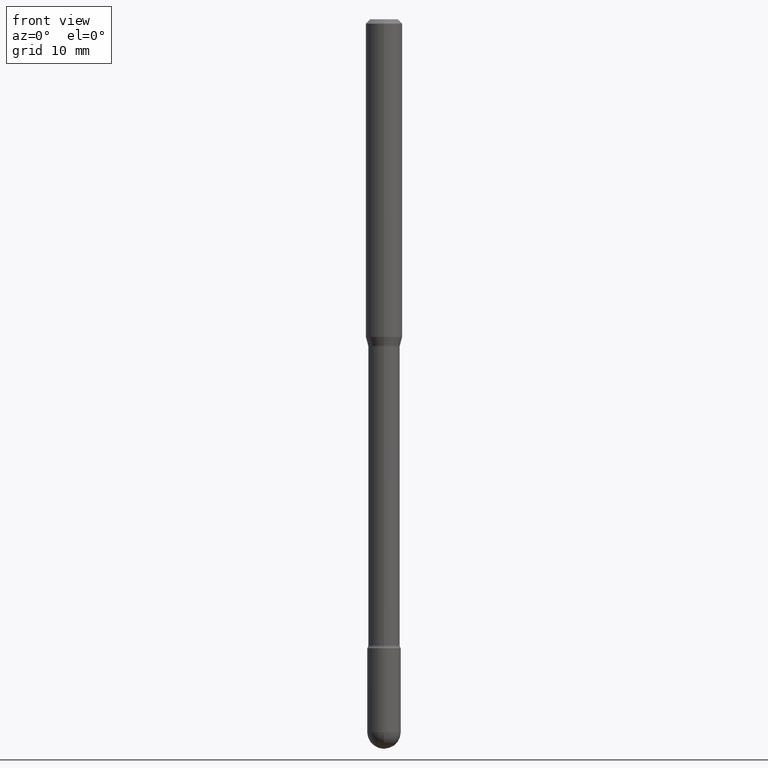
[diagram: clean part render]
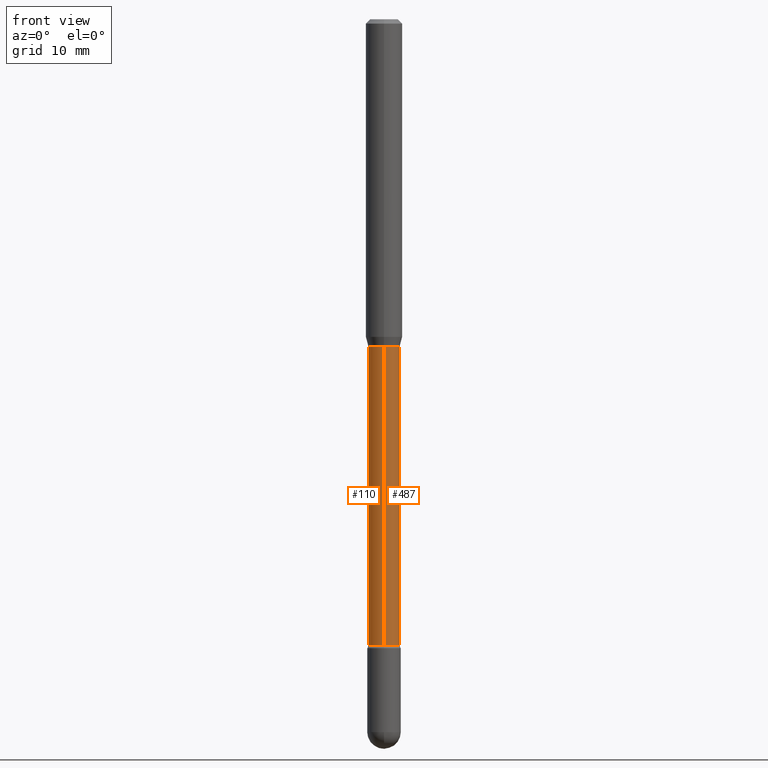
[diagram: same view with one multi-face feature highlighted, each face labeled with its STEP entity id]
A machine part, front view. The highlighted faces form ONE feature: a constant-radius fillet chain: 2 tangent blend faces with common blend radius 1.3729 mm. The faces share edges in the B-rep.
Their STEP definitions:
[1] entity #110 (Cylinder):
#28 = ORIENTED_EDGE ( 'NONE', *, *, #140, .T. ) ;
#39 = CARTESIAN_POINT ( 'NONE',  ( 3.963052108702488674E-16, 0.05404999999999254845, -2.145429341715430649 ) ) ;
#66 = VERTEX_POINT ( 'NONE', #273 ) ;
#67 = CIRCLE ( 'NONE', #247, 0.05405000000000000776 ) ;
#69 = ORIENTED_EDGE ( 'NONE', *, *, #494, .F. ) ;
#92 = DIRECTION ( 'NONE',  ( -2.445520969400464168E-29, 3.491406638149850481E-15, 1.000000000000000000 ) ) ;
#100 = CARTESIAN_POINT ( 'NONE',  ( 3.840483486783342056E-16, 0.05405000000000002164, 2.893628700992465494E-16 ) ) ;
#110 = ADVANCED_FACE ( 'NONE', ( #437 ), #351, .T. ) ;
#111 = CARTESIAN_POINT ( 'NONE',  ( -3.774291327288904667E-16, -0.05405000000000752258, -2.145429341715430205 ) ) ;
#127 = VECTOR ( 'NONE', #374, 39.37007874015748143 ) ;
#140 = EDGE_CURVE ( 'NONE', #433, #289, #322, .T. ) ;
#177 = DIRECTION ( 'NONE',  ( -6.982962677686265922E-15, -1.000000000000000000, 3.491406638149850876E-15 ) ) ;
#184 = EDGE_CURVE ( 'NONE', #289, #341, #403, .T. ) ;
#202 = EDGE_LOOP ( 'NONE', ( #69, #28, #261, #263 ) ) ;
#227 = AXIS2_PLACEMENT_3D ( 'NONE', #357, #92, #232 ) ;
#232 = DIRECTION ( 'NONE',  ( -6.982962677686265922E-15, -1.000000000000000000, 5.054297860618430366E-15 ) ) ;
#247 = AXIS2_PLACEMENT_3D ( 'NONE', #282, #455, #452 ) ;
#258 = CARTESIAN_POINT ( 'NONE',  ( -1.169113584055446105E-44, 1.669184350826100908E-30, 4.780733988912460139E-16 ) ) ;
#261 = ORIENTED_EDGE ( 'NONE', *, *, #184, .T. ) ;
#263 = ORIENTED_EDGE ( 'NONE', *, *, #268, .F. ) ;
#268 = EDGE_CURVE ( 'NONE', #66, #341, #67, .T. ) ;
#273 = CARTESIAN_POINT ( 'NONE',  ( 3.840483486783868128E-16, 0.05404999999999609422, -1.121974787463811296 ) ) ;
#274 = CARTESIAN_POINT ( 'NONE',  ( -3.774291327289428273E-16, -0.05405000000000002164, 6.667839276832456264E-16 ) ) ;
#282 = CARTESIAN_POINT ( 'NONE',  ( 2.743812869881379351E-29, -3.917270220787918029E-15, -1.121974787463811074 ) ) ;
#289 = VERTEX_POINT ( 'NONE', #111 ) ;
#300 = CARTESIAN_POINT ( 'NONE',  ( -3.774291327289153158E-16, -0.05405000000000392824, -1.121974787463811074 ) ) ;
#322 = CIRCLE ( 'NONE', #227, 0.05405000000000003552 ) ;
#337 = VECTOR ( 'NONE', #528, 39.37007874015748143 ) ;
#341 = VERTEX_POINT ( 'NONE', #300 ) ;
#351 = CYLINDRICAL_SURFACE ( 'NONE', #399, 0.05405000000000002164 ) ;
#357 = CARTESIAN_POINT ( 'NONE',  ( 5.246692443532119880E-29, -7.490566245346716634E-15, -2.145429341715430205 ) ) ;
#369 = LINE ( 'NONE', #100, #127 ) ;
#374 = DIRECTION ( 'NONE',  ( -2.445520969400463888E-29, 3.491406638149850481E-15, 1.000000000000000000 ) ) ;
#399 = AXIS2_PLACEMENT_3D ( 'NONE', #258, #524, #177 ) ;
#403 = LINE ( 'NONE', #274, #337 ) ;
#433 = VERTEX_POINT ( 'NONE', #39 ) ;
#437 = FACE_OUTER_BOUND ( 'NONE', #202, .T. ) ;
#452 = DIRECTION ( 'NONE',  ( -6.982962677686265922E-15, -1.000000000000000000, 2.527148930309216366E-15 ) ) ;
#455 = DIRECTION ( 'NONE',  ( -2.445520969400464168E-29, 3.491406638149850481E-15, 1.000000000000000000 ) ) ;
#494 = EDGE_CURVE ( 'NONE', #433, #66, #369, .T. ) ;
#524 = DIRECTION ( 'NONE',  ( -2.445520969400464168E-29, 3.491406638149850481E-15, 1.000000000000000000 ) ) ;
#528 = DIRECTION ( 'NONE',  ( -2.445520969400463888E-29, 3.491406638149850481E-15, 1.000000000000000000 ) ) ;
[2] entity #487 (Cylinder):
#39 = CARTESIAN_POINT ( 'NONE',  ( 3.963052108702488674E-16, 0.05404999999999254845, -2.145429341715430649 ) ) ;
#41 = CYLINDRICAL_SURFACE ( 'NONE', #486, 0.05405000000000002164 ) ;
#55 = EDGE_CURVE ( 'NONE', #341, #66, #165, .T. ) ;
#66 = VERTEX_POINT ( 'NONE', #273 ) ;
#76 = CARTESIAN_POINT ( 'NONE',  ( -1.169113584055446105E-44, 1.669184350826100908E-30, 4.780733988912460139E-16 ) ) ;
#100 = CARTESIAN_POINT ( 'NONE',  ( 3.840483486783342056E-16, 0.05405000000000002164, 2.893628700992465494E-16 ) ) ;
#111 = CARTESIAN_POINT ( 'NONE',  ( -3.774291327288904667E-16, -0.05405000000000752258, -2.145429341715430205 ) ) ;
#127 = VECTOR ( 'NONE', #374, 39.37007874015748143 ) ;
#165 = CIRCLE ( 'NONE', #448, 0.05405000000000000776 ) ;
#184 = EDGE_CURVE ( 'NONE', #289, #341, #403, .T. ) ;
#251 = EDGE_LOOP ( 'NONE', ( #519, #330, #257, #475 ) ) ;
#256 = DIRECTION ( 'NONE',  ( -2.445520969400464168E-29, 3.491406638149850481E-15, 1.000000000000000000 ) ) ;
#257 = ORIENTED_EDGE ( 'NONE', *, *, #55, .F. ) ;
#273 = CARTESIAN_POINT ( 'NONE',  ( 3.840483486783868128E-16, 0.05404999999999609422, -1.121974787463811296 ) ) ;
#274 = CARTESIAN_POINT ( 'NONE',  ( -3.774291327289428273E-16, -0.05405000000000002164, 6.667839276832456264E-16 ) ) ;
#289 = VERTEX_POINT ( 'NONE', #111 ) ;
#299 = EDGE_CURVE ( 'NONE', #289, #433, #517, .T. ) ;
#300 = CARTESIAN_POINT ( 'NONE',  ( -3.774291327289153158E-16, -0.05405000000000392824, -1.121974787463811074 ) ) ;
#304 = DIRECTION ( 'NONE',  ( -6.982962677686265922E-15, -1.000000000000000000, 3.491406638149850876E-15 ) ) ;
#330 = ORIENTED_EDGE ( 'NONE', *, *, #494, .T. ) ;
#331 = CARTESIAN_POINT ( 'NONE',  ( 5.246692443532119880E-29, -7.490566245346716634E-15, -2.145429341715430205 ) ) ;
#337 = VECTOR ( 'NONE', #528, 39.37007874015748143 ) ;
#341 = VERTEX_POINT ( 'NONE', #300 ) ;
#349 = FACE_OUTER_BOUND ( 'NONE', #251, .T. ) ;
#367 = DIRECTION ( 'NONE',  ( -6.982962677686265922E-15, -1.000000000000000000, 5.054297860618430366E-15 ) ) ;
#369 = LINE ( 'NONE', #100, #127 ) ;
#374 = DIRECTION ( 'NONE',  ( -2.445520969400463888E-29, 3.491406638149850481E-15, 1.000000000000000000 ) ) ;
#384 = DIRECTION ( 'NONE',  ( -2.445520969400464168E-29, 3.491406638149850481E-15, 1.000000000000000000 ) ) ;
#396 = DIRECTION ( 'NONE',  ( -2.445520969400464168E-29, 3.491406638149850481E-15, 1.000000000000000000 ) ) ;
#403 = LINE ( 'NONE', #274, #337 ) ;
#433 = VERTEX_POINT ( 'NONE', #39 ) ;
#448 = AXIS2_PLACEMENT_3D ( 'NONE', #523, #396, #525 ) ;
#475 = ORIENTED_EDGE ( 'NONE', *, *, #184, .F. ) ;
#486 = AXIS2_PLACEMENT_3D ( 'NONE', #76, #256, #304 ) ;
#487 = ADVANCED_FACE ( 'NONE', ( #349 ), #41, .T. ) ;
#494 = EDGE_CURVE ( 'NONE', #433, #66, #369, .T. ) ;
#517 = CIRCLE ( 'NONE', #565, 0.05405000000000003552 ) ;
#519 = ORIENTED_EDGE ( 'NONE', *, *, #299, .T. ) ;
#523 = CARTESIAN_POINT ( 'NONE',  ( 2.743812869881379351E-29, -3.917270220787918029E-15, -1.121974787463811074 ) ) ;
#525 = DIRECTION ( 'NONE',  ( -6.982962677686265922E-15, -1.000000000000000000, 2.527148930309216366E-15 ) ) ;
#528 = DIRECTION ( 'NONE',  ( -2.445520969400463888E-29, 3.491406638149850481E-15, 1.000000000000000000 ) ) ;
#565 = AXIS2_PLACEMENT_3D ( 'NONE', #331, #384, #367 ) ;